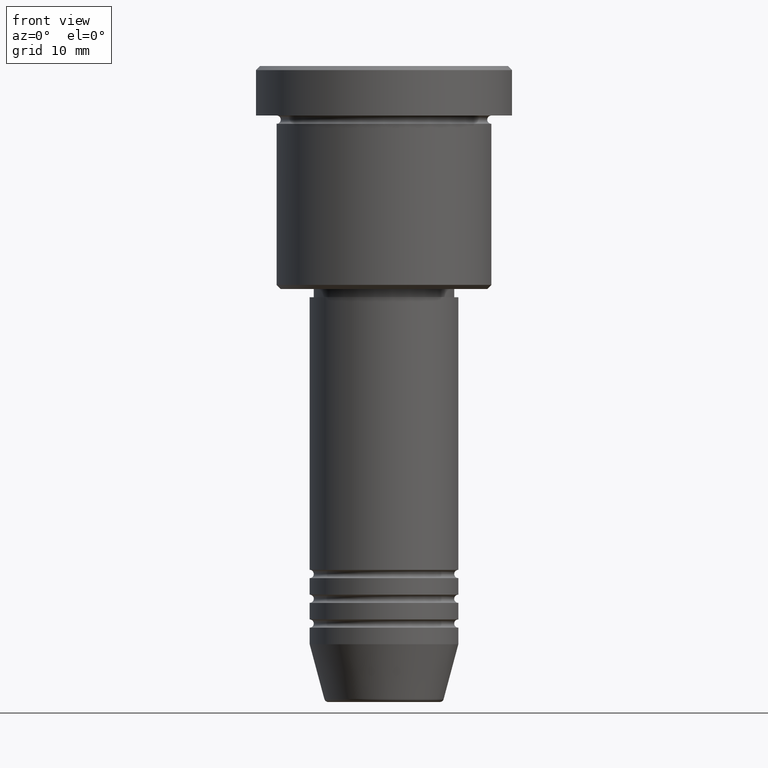
[diagram: clean part render]
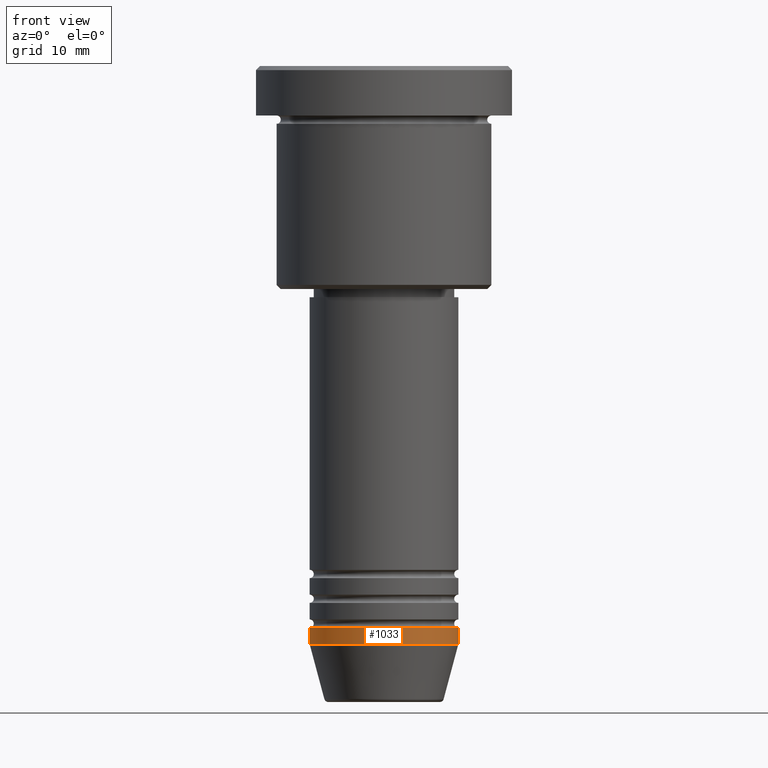
[diagram: same view with one face highlighted and labeled with its STEP entity id]
A machine part, front view. The second image highlights one B-rep face of the part: STEP entity #1033.
In plain terms, the highlighted cylindrical surface (partial cylindrical patch) has radius 9 mm, axis along (-0, -0, 1).
Its self-contained STEP definition (entity closure, byte-faithful):
#24 = CYLINDRICAL_SURFACE ( 'NONE', #1007, 9.000000000000000000 ) ;
#37 = CARTESIAN_POINT ( 'NONE',  ( 9.000000000000000000, 0.000000000000000000, 0.000000000000000000 ) ) ;
#42 = ORIENTED_EDGE ( 'NONE', *, *, #705, .T. ) ;
#75 = VERTEX_POINT ( 'NONE', #342 ) ;
#78 = DIRECTION ( 'NONE',  ( -0.000000000000000000, -0.000000000000000000, 1.000000000000000000 ) ) ;
#94 = EDGE_CURVE ( 'NONE', #295, #266, #620, .T. ) ;
#102 = DIRECTION ( 'NONE',  ( -0.000000000000000000, -0.000000000000000000, 1.000000000000000000 ) ) ;
#150 = CARTESIAN_POINT ( 'NONE',  ( -9.000000000000000000, 1.102182119232617714E-15, -68.00000000000000000 ) ) ;
#168 = VERTEX_POINT ( 'NONE', #764 ) ;
#241 = DIRECTION ( 'NONE',  ( -0.000000000000000000, -0.000000000000000000, 1.000000000000000000 ) ) ;
#265 = EDGE_CURVE ( 'NONE', #168, #295, #797, .T. ) ;
#266 = VERTEX_POINT ( 'NONE', #1160 ) ;
#295 = VERTEX_POINT ( 'NONE', #150 ) ;
#305 = CARTESIAN_POINT ( 'NONE',  ( 0.000000000000000000, 0.000000000000000000, 0.000000000000000000 ) ) ;
#308 = ORIENTED_EDGE ( 'NONE', *, *, #265, .F. ) ;
#330 = EDGE_LOOP ( 'NONE', ( #308, #42, #993, #1035 ) ) ;
#342 = CARTESIAN_POINT ( 'NONE',  ( 9.000000000000000000, 0.000000000000000000, -70.00000000000000000 ) ) ;
#345 = CARTESIAN_POINT ( 'NONE',  ( 0.000000000000000000, 0.000000000000000000, -70.00000000000000000 ) ) ;
#564 = AXIS2_PLACEMENT_3D ( 'NONE', #886, #78, #804 ) ;
#579 = DIRECTION ( 'NONE',  ( 1.000000000000000000, 0.000000000000000000, 0.000000000000000000 ) ) ;
#620 = CIRCLE ( 'NONE', #564, 9.000000000000000000 ) ;
#664 = AXIS2_PLACEMENT_3D ( 'NONE', #345, #241, #1053 ) ;
#666 = LINE ( 'NONE', #37, #701 ) ;
#669 = FACE_OUTER_BOUND ( 'NONE', #330, .T. ) ;
#672 = VECTOR ( 'NONE', #1151, 1000.000000000000000 ) ;
#700 = CIRCLE ( 'NONE', #664, 9.000000000000000000 ) ;
#701 = VECTOR ( 'NONE', #1130, 1000.000000000000000 ) ;
#705 = EDGE_CURVE ( 'NONE', #168, #75, #700, .T. ) ;
#764 = CARTESIAN_POINT ( 'NONE',  ( -9.000000000000000000, 1.102182119232617714E-15, -70.00000000000000000 ) ) ;
#797 = LINE ( 'NONE', #1168, #672 ) ;
#804 = DIRECTION ( 'NONE',  ( 1.000000000000000000, 0.000000000000000000, 0.000000000000000000 ) ) ;
#886 = CARTESIAN_POINT ( 'NONE',  ( 0.000000000000000000, 0.000000000000000000, -68.00000000000000000 ) ) ;
#993 = ORIENTED_EDGE ( 'NONE', *, *, #1067, .T. ) ;
#1007 = AXIS2_PLACEMENT_3D ( 'NONE', #305, #102, #579 ) ;
#1033 = ADVANCED_FACE ( 'NONE', ( #669 ), #24, .T. ) ;
#1035 = ORIENTED_EDGE ( 'NONE', *, *, #94, .F. ) ;
#1053 = DIRECTION ( 'NONE',  ( 1.000000000000000000, 0.000000000000000000, 0.000000000000000000 ) ) ;
#1067 = EDGE_CURVE ( 'NONE', #75, #266, #666, .T. ) ;
#1130 = DIRECTION ( 'NONE',  ( -0.000000000000000000, -0.000000000000000000, 1.000000000000000000 ) ) ;
#1151 = DIRECTION ( 'NONE',  ( -0.000000000000000000, -0.000000000000000000, 1.000000000000000000 ) ) ;
#1160 = CARTESIAN_POINT ( 'NONE',  ( 9.000000000000000000, 0.000000000000000000, -68.00000000000000000 ) ) ;
#1168 = CARTESIAN_POINT ( 'NONE',  ( -9.000000000000000000, 1.102182119232617714E-15, 0.000000000000000000 ) ) ;